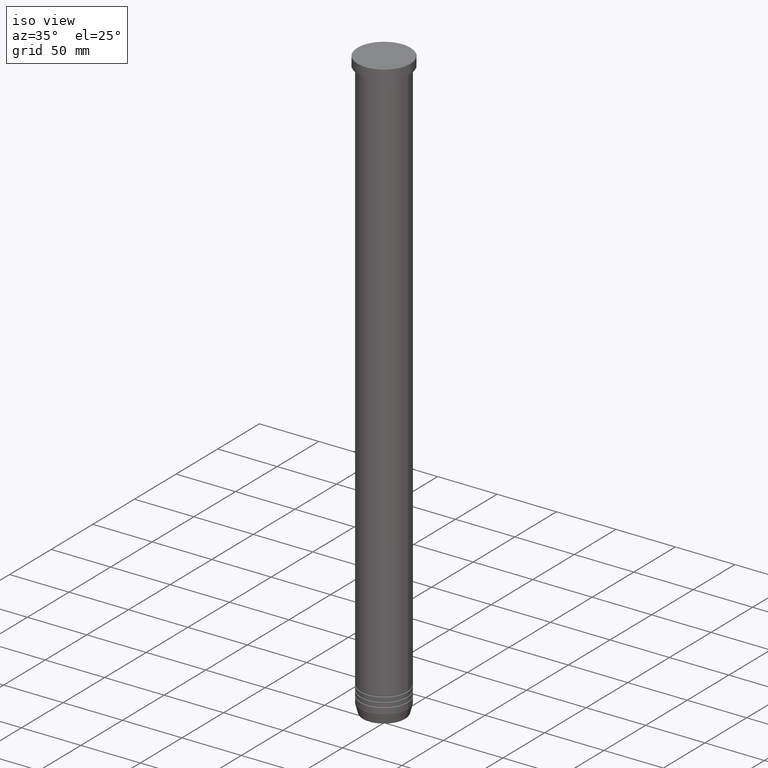
[diagram: clean part render]
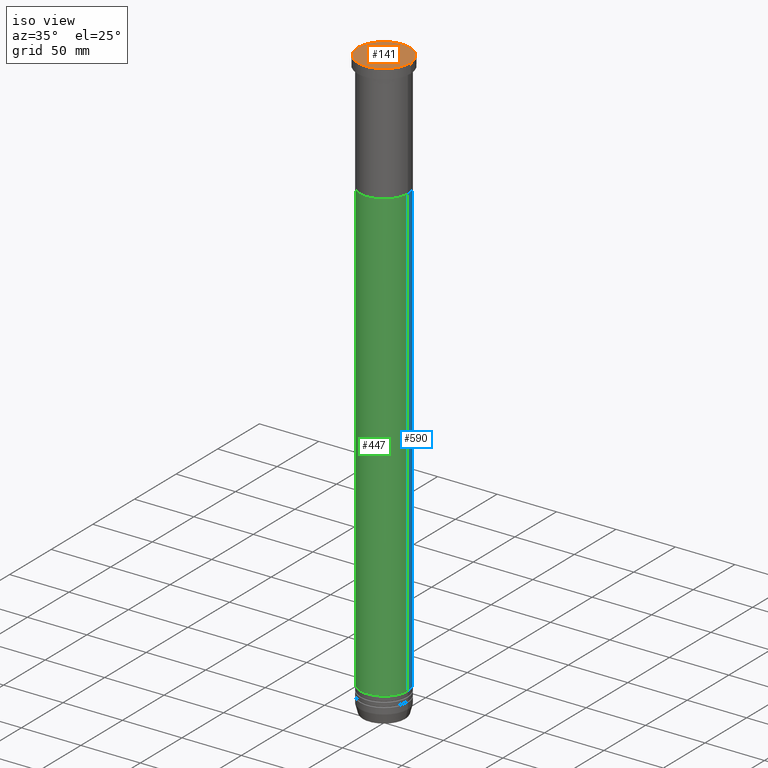
[diagram: same view with three faces highlighted in distinct colors, each labeled with its STEP entity id]
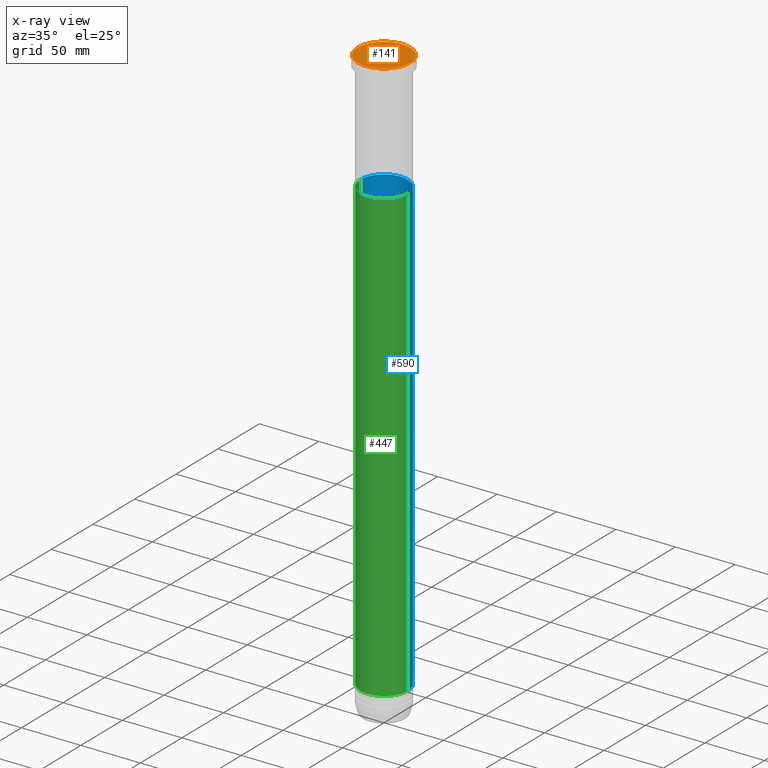
[diagram: x-ray of the same camera — body ghosted, the three highlighted faces saturated]
A machine part, iso view with three faces highlighted in distinct colors.
The next image is the same camera in x-ray (body ghosted, the three faces saturated) — at least one of them is partly hidden behind the body in this view.
Their STEP definitions:

[orange] entity #141 — the highlighted planar face has unit normal (0, -0, 1).
#10 = ORIENTED_EDGE ( 'NONE', *, *, #1059, .T. ) ;
#56 = AXIS2_PLACEMENT_3D ( 'NONE', #934, #364, #299 ) ;
#70 = CARTESIAN_POINT ( 'NONE',  ( 21.99999999999997868, 2.724839128102859413E-15, 0.000000000000000000 ) ) ;
#107 = CIRCLE ( 'NONE', #972, 21.99999999999997868 ) ;
#141 = ADVANCED_FACE ( 'NONE', ( #949 ), #953, .T. ) ;
#218 = CARTESIAN_POINT ( 'NONE',  ( 0.000000000000000000, 0.000000000000000000, 0.000000000000000000 ) ) ;
#268 = CARTESIAN_POINT ( 'NONE',  ( 0.000000000000000000, 0.000000000000000000, 0.000000000000000000 ) ) ;
#299 = DIRECTION ( 'NONE',  ( 1.000000000000000000, 0.000000000000000000, 0.000000000000000000 ) ) ;
#305 = DIRECTION ( 'NONE',  ( 1.000000000000000000, 0.000000000000000000, 0.000000000000000000 ) ) ;
#321 = EDGE_CURVE ( 'NONE', #676, #588, #107, .T. ) ;
#364 = DIRECTION ( 'NONE',  ( -0.000000000000000000, -0.000000000000000000, 1.000000000000000000 ) ) ;
#420 = DIRECTION ( 'NONE',  ( -0.000000000000000000, -0.000000000000000000, 1.000000000000000000 ) ) ;
#588 = VERTEX_POINT ( 'NONE', #649 ) ;
#603 = AXIS2_PLACEMENT_3D ( 'NONE', #218, #945, #305 ) ;
#649 = CARTESIAN_POINT ( 'NONE',  ( -21.99999999999997868, 0.000000000000000000, 0.000000000000000000 ) ) ;
#676 = VERTEX_POINT ( 'NONE', #70 ) ;
#747 = DIRECTION ( 'NONE',  ( 1.000000000000000000, 0.000000000000000000, 0.000000000000000000 ) ) ;
#841 = EDGE_LOOP ( 'NONE', ( #10, #930 ) ) ;
#930 = ORIENTED_EDGE ( 'NONE', *, *, #321, .T. ) ;
#934 = CARTESIAN_POINT ( 'NONE',  ( 0.000000000000000000, 0.000000000000000000, 0.000000000000000000 ) ) ;
#945 = DIRECTION ( 'NONE',  ( 0.000000000000000000, -0.000000000000000000, 1.000000000000000000 ) ) ;
#949 = FACE_OUTER_BOUND ( 'NONE', #841, .T. ) ;
#953 = PLANE ( 'NONE',  #603 ) ;
#972 = AXIS2_PLACEMENT_3D ( 'NONE', #268, #420, #747 ) ;
#1047 = CIRCLE ( 'NONE', #56, 21.99999999999997868 ) ;
#1059 = EDGE_CURVE ( 'NONE', #588, #676, #1047, .T. ) ;

[blue] entity #590 — the highlighted cylindrical surface (edge-blend (fillet) strip) has radius 20 mm, axis along (-0, -0, 1).
#3 = AXIS2_PLACEMENT_3D ( 'NONE', #980, #254, #651 ) ;
#36 = CIRCLE ( 'NONE', #3, 20.00000000000000000 ) ;
#50 = VECTOR ( 'NONE', #484, 1000.000000000000000 ) ;
#59 = DIRECTION ( 'NONE',  ( 1.000000000000000000, 0.000000000000000000, 0.000000000000000000 ) ) ;
#102 = EDGE_CURVE ( 'NONE', #750, #238, #304, .T. ) ;
#134 = ORIENTED_EDGE ( 'NONE', *, *, #1039, .T. ) ;
#236 = CARTESIAN_POINT ( 'NONE',  ( 0.000000000000000000, 0.000000000000000000, 0.000000000000000000 ) ) ;
#238 = VERTEX_POINT ( 'NONE', #593 ) ;
#254 = DIRECTION ( 'NONE',  ( -0.000000000000000000, -0.000000000000000000, 1.000000000000000000 ) ) ;
#257 = ORIENTED_EDGE ( 'NONE', *, *, #666, .F. ) ;
#304 = LINE ( 'NONE', #809, #50 ) ;
#313 = AXIS2_PLACEMENT_3D ( 'NONE', #236, #407, #474 ) ;
#324 = EDGE_LOOP ( 'NONE', ( #134, #1007, #257, #412 ) ) ;
#407 = DIRECTION ( 'NONE',  ( -0.000000000000000000, -0.000000000000000000, 1.000000000000000000 ) ) ;
#412 = ORIENTED_EDGE ( 'NONE', *, *, #102, .F. ) ;
#474 = DIRECTION ( 'NONE',  ( 1.000000000000000000, 0.000000000000000000, 0.000000000000000000 ) ) ;
#482 = CARTESIAN_POINT ( 'NONE',  ( 19.99999999999999289, 0.000000000000000000, -478.0000000000001137 ) ) ;
#484 = DIRECTION ( 'NONE',  ( -0.000000000000000000, -0.000000000000000000, 1.000000000000000000 ) ) ;
#569 = CARTESIAN_POINT ( 'NONE',  ( -19.99999999999999289, 2.449293598294705724E-15, -478.0000000000001137 ) ) ;
#572 = VERTEX_POINT ( 'NONE', #569 ) ;
#584 = VERTEX_POINT ( 'NONE', #880 ) ;
#590 = ADVANCED_FACE ( 'NONE', ( #800 ), #1057, .T. ) ;
#593 = CARTESIAN_POINT ( 'NONE',  ( 20.00000000000000000, 0.000000000000000000, -100.0000000000000000 ) ) ;
#615 = DIRECTION ( 'NONE',  ( -0.000000000000000000, -0.000000000000000000, 1.000000000000000000 ) ) ;
#651 = DIRECTION ( 'NONE',  ( 1.000000000000000000, 0.000000000000000000, 0.000000000000000000 ) ) ;
#666 = EDGE_CURVE ( 'NONE', #238, #584, #36, .T. ) ;
#693 = DIRECTION ( 'NONE',  ( -0.000000000000000000, -0.000000000000000000, 1.000000000000000000 ) ) ;
#750 = VERTEX_POINT ( 'NONE', #482 ) ;
#800 = FACE_OUTER_BOUND ( 'NONE', #324, .T. ) ;
#809 = CARTESIAN_POINT ( 'NONE',  ( 19.99999999999999645, 0.000000000000000000, 0.000000000000000000 ) ) ;
#842 = AXIS2_PLACEMENT_3D ( 'NONE', #1014, #615, #59 ) ;
#861 = LINE ( 'NONE', #1018, #939 ) ;
#880 = CARTESIAN_POINT ( 'NONE',  ( -20.00000000000000000, 2.449293598294706513E-15, -100.0000000000000000 ) ) ;
#939 = VECTOR ( 'NONE', #693, 1000.000000000000000 ) ;
#980 = CARTESIAN_POINT ( 'NONE',  ( 0.000000000000000000, 0.000000000000000000, -100.0000000000000000 ) ) ;
#993 = CIRCLE ( 'NONE', #842, 19.99999999999999289 ) ;
#1007 = ORIENTED_EDGE ( 'NONE', *, *, #1008, .T. ) ;
#1008 = EDGE_CURVE ( 'NONE', #572, #584, #861, .T. ) ;
#1014 = CARTESIAN_POINT ( 'NONE',  ( 0.000000000000000000, 0.000000000000000000, -478.0000000000001137 ) ) ;
#1018 = CARTESIAN_POINT ( 'NONE',  ( -19.99999999999999645, 2.449293598294706119E-15, 0.000000000000000000 ) ) ;
#1039 = EDGE_CURVE ( 'NONE', #750, #572, #993, .T. ) ;
#1057 = CYLINDRICAL_SURFACE ( 'NONE', #313, 19.99999999999999645 ) ;

[green] entity #447 — the highlighted cylindrical surface (edge-blend (fillet) strip) has radius 20 mm, axis along (-0, -0, 1).
#50 = VECTOR ( 'NONE', #484, 1000.000000000000000 ) ;
#90 = ORIENTED_EDGE ( 'NONE', *, *, #824, .F. ) ;
#102 = EDGE_CURVE ( 'NONE', #750, #238, #304, .T. ) ;
#174 = EDGE_LOOP ( 'NONE', ( #987, #279, #493, #90 ) ) ;
#202 = FACE_OUTER_BOUND ( 'NONE', #174, .T. ) ;
#238 = VERTEX_POINT ( 'NONE', #593 ) ;
#259 = DIRECTION ( 'NONE',  ( 1.000000000000000000, 0.000000000000000000, 0.000000000000000000 ) ) ;
#279 = ORIENTED_EDGE ( 'NONE', *, *, #478, .T. ) ;
#304 = LINE ( 'NONE', #809, #50 ) ;
#347 = AXIS2_PLACEMENT_3D ( 'NONE', #438, #354, #259 ) ;
#354 = DIRECTION ( 'NONE',  ( -0.000000000000000000, -0.000000000000000000, 1.000000000000000000 ) ) ;
#367 = DIRECTION ( 'NONE',  ( 1.000000000000000000, 0.000000000000000000, 0.000000000000000000 ) ) ;
#401 = AXIS2_PLACEMENT_3D ( 'NONE', #697, #1031, #1017 ) ;
#438 = CARTESIAN_POINT ( 'NONE',  ( 0.000000000000000000, 0.000000000000000000, -100.0000000000000000 ) ) ;
#447 = ADVANCED_FACE ( 'NONE', ( #202 ), #529, .T. ) ;
#448 = AXIS2_PLACEMENT_3D ( 'NONE', #794, #850, #367 ) ;
#478 = EDGE_CURVE ( 'NONE', #572, #750, #852, .T. ) ;
#482 = CARTESIAN_POINT ( 'NONE',  ( 19.99999999999999289, 0.000000000000000000, -478.0000000000001137 ) ) ;
#484 = DIRECTION ( 'NONE',  ( -0.000000000000000000, -0.000000000000000000, 1.000000000000000000 ) ) ;
#493 = ORIENTED_EDGE ( 'NONE', *, *, #102, .T. ) ;
#529 = CYLINDRICAL_SURFACE ( 'NONE', #448, 19.99999999999999645 ) ;
#569 = CARTESIAN_POINT ( 'NONE',  ( -19.99999999999999289, 2.449293598294705724E-15, -478.0000000000001137 ) ) ;
#572 = VERTEX_POINT ( 'NONE', #569 ) ;
#584 = VERTEX_POINT ( 'NONE', #880 ) ;
#593 = CARTESIAN_POINT ( 'NONE',  ( 20.00000000000000000, 0.000000000000000000, -100.0000000000000000 ) ) ;
#693 = DIRECTION ( 'NONE',  ( -0.000000000000000000, -0.000000000000000000, 1.000000000000000000 ) ) ;
#697 = CARTESIAN_POINT ( 'NONE',  ( 0.000000000000000000, 0.000000000000000000, -478.0000000000001137 ) ) ;
#750 = VERTEX_POINT ( 'NONE', #482 ) ;
#794 = CARTESIAN_POINT ( 'NONE',  ( 0.000000000000000000, 0.000000000000000000, 0.000000000000000000 ) ) ;
#809 = CARTESIAN_POINT ( 'NONE',  ( 19.99999999999999645, 0.000000000000000000, 0.000000000000000000 ) ) ;
#824 = EDGE_CURVE ( 'NONE', #584, #238, #1023, .T. ) ;
#850 = DIRECTION ( 'NONE',  ( -0.000000000000000000, -0.000000000000000000, 1.000000000000000000 ) ) ;
#852 = CIRCLE ( 'NONE', #401, 19.99999999999999289 ) ;
#861 = LINE ( 'NONE', #1018, #939 ) ;
#880 = CARTESIAN_POINT ( 'NONE',  ( -20.00000000000000000, 2.449293598294706513E-15, -100.0000000000000000 ) ) ;
#939 = VECTOR ( 'NONE', #693, 1000.000000000000000 ) ;
#987 = ORIENTED_EDGE ( 'NONE', *, *, #1008, .F. ) ;
#1008 = EDGE_CURVE ( 'NONE', #572, #584, #861, .T. ) ;
#1017 = DIRECTION ( 'NONE',  ( 1.000000000000000000, 0.000000000000000000, 0.000000000000000000 ) ) ;
#1018 = CARTESIAN_POINT ( 'NONE',  ( -19.99999999999999645, 2.449293598294706119E-15, 0.000000000000000000 ) ) ;
#1023 = CIRCLE ( 'NONE', #347, 20.00000000000000000 ) ;
#1031 = DIRECTION ( 'NONE',  ( -0.000000000000000000, -0.000000000000000000, 1.000000000000000000 ) ) ;